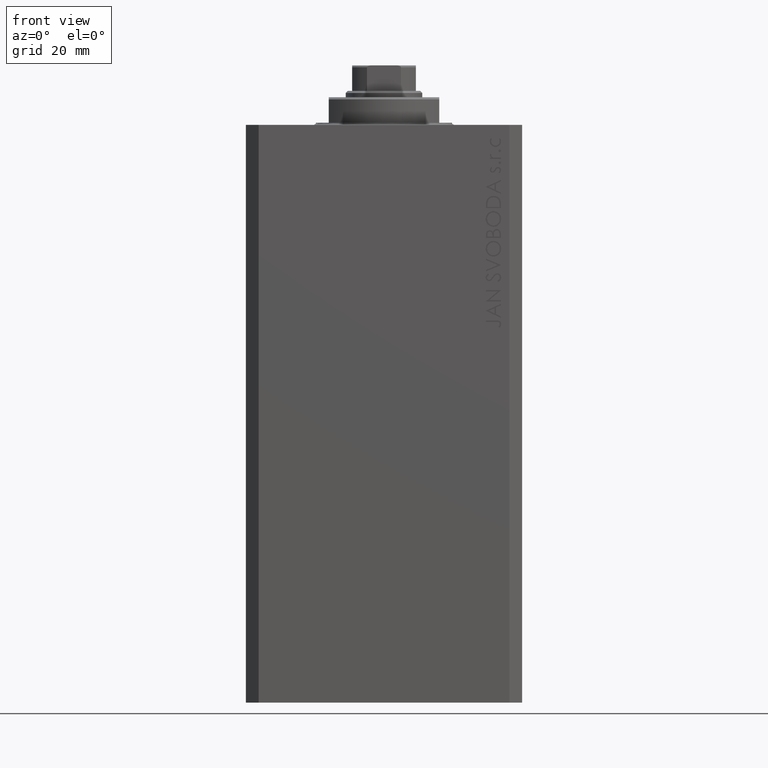
[diagram: clean part render]
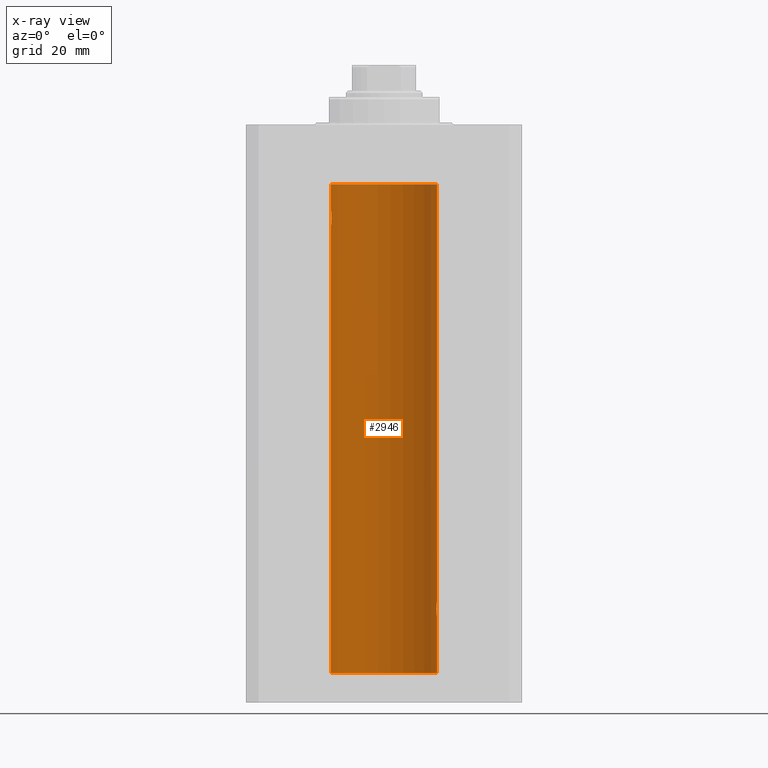
[diagram: x-ray — body ghosted, one internal face saturated and labeled with its STEP entity id]
A machine part, front view, then the same camera in x-ray: the body is ghosted and one INTERNAL B-rep face — a face not visible from any outside direction — is saturated and labeled: STEP entity #2946.
In plain terms, the highlighted cylindrical surface (partial cylindrical patch) has radius 12.5 mm, axis along (0, 0, 1).
Its self-contained STEP definition (entity closure, byte-faithful):
#602 = VECTOR ( 'NONE', #7820, 1000.000000000000000 ) ;
#641 = LINE ( 'NONE', #39407, #602 ) ;
#1230 = CARTESIAN_POINT ( 'NONE',  ( -12.46009879577771606, 1.003863686549169465, -23.73470742397611843 ) ) ;
#1662 = CARTESIAN_POINT ( 'NONE',  ( 12.50000000000000000, 2.320363022323678888E-15, -116.0000000000000142 ) ) ;
#1675 = DIRECTION ( 'NONE',  ( 0.000000000000000000, 0.000000000000000000, 1.000000000000000000 ) ) ;
#1892 = CARTESIAN_POINT ( 'NONE',  ( 12.33896267925302759, 2.000000000000248246, -114.2614317422078898 ) ) ;
#2168 = CARTESIAN_POINT ( 'NONE',  ( -12.50000000000000000, 1.530808426276628993E-15, -23.99999999999999645 ) ) ;
#2943 = CYLINDRICAL_SURFACE ( 'NONE', #36123, 12.50000000000000000 ) ;
#2946 = ADVANCED_FACE ( 'NONE', ( #10821 ), #2943, .F. ) ;
#3405 = DIRECTION ( 'NONE',  ( 1.000000000000000000, 0.000000000000000000, 0.000000000000000000 ) ) ;
#4128 = CARTESIAN_POINT ( 'NONE',  ( 0.000000000000000000, 0.000000000000000000, -129.0999999999999943 ) ) ;
#4309 = EDGE_CURVE ( 'NONE', #7398, #25077, #36822, .T. ) ;
#4817 = CARTESIAN_POINT ( 'NONE',  ( -12.40913174964213184, 1.507394620545641439, -23.32102833500698225 ) ) ;
#5486 = CARTESIAN_POINT ( 'NONE',  ( 12.37760587642916477, 1.747868572747719229, -115.0063965316900294 ) ) ;
#5768 = CARTESIAN_POINT ( 'NONE',  ( -12.34922241902463114, 1.935814255713574239, -22.51937350851555308 ) ) ;
#7005 = CARTESIAN_POINT ( 'NONE',  ( 0.000000000000000000, 0.000000000000000000, -129.0999999999999943 ) ) ;
#7398 = VERTEX_POINT ( 'NONE', #39677 ) ;
#7820 = DIRECTION ( 'NONE',  ( -0.000000000000000000, -0.000000000000000000, 1.000000000000000000 ) ) ;
#8384 = CARTESIAN_POINT ( 'NONE',  ( 0.000000000000000000, 0.000000000000000000, -13.99999999999999822 ) ) ;
#8412 = CARTESIAN_POINT ( 'NONE',  ( -12.37764291807175354, 1.747608771958140794, -20.99316879552500481 ) ) ;
#8426 = CIRCLE ( 'NONE', #22113, 12.50000000000000000 ) ;
#8600 = CARTESIAN_POINT ( 'NONE',  ( 12.48390005916863110, 0.6457215011736527899, -115.8974277155426762 ) ) ;
#9040 = ORIENTED_EDGE ( 'NONE', *, *, #46904, .T. ) ;
#9120 = CARTESIAN_POINT ( 'NONE',  ( -12.34781876294798053, 1.947190906025043633, -21.47436412829509678 ) ) ;
#9226 = CARTESIAN_POINT ( 'NONE',  ( -12.50000000000000000, 1.867773856434666690E-17, -20.00000000000000000 ) ) ;
#9349 = CARTESIAN_POINT ( 'NONE',  ( -12.46909283808506430, 0.8868029758979402155, -23.79742491916155345 ) ) ;
#9781 = B_SPLINE_CURVE_WITH_KNOTS ( 'NONE', 3,
 ( #44825, #19985, #23083, #16406, #12622, #34782, #27145, #41711, #15947, #30982, #45529, #41955, #22853, #12153, #23798, #38383, #16638, #11905 ),
 .UNSPECIFIED., .F., .F.,
 ( 4, 2, 2, 2, 2, 2, 2, 2, 4 ),
 ( 0.003132244164174466730, 0.003523586189974241625, 0.003914928215774016521, 0.004306270241573791416, 0.004697612267373566311, 0.005088954293173341206, 0.005480296318973116101, 0.005871638344772890997, 0.006262980370572665892 ),
 .UNSPECIFIED. ) ;
#9920 = ORIENTED_EDGE ( 'NONE', *, *, #42864, .T. ) ;
#10593 = EDGE_CURVE ( 'NONE', #13975, #39732, #8426, .T. ) ;
#10695 = EDGE_LOOP ( 'NONE', ( #20436, #42482, #12017, #26968, #33721, #9920, #9040, #46504, #36126 ) ) ;
#10821 = FACE_OUTER_BOUND ( 'NONE', #10695, .T. ) ;
#11735 = VECTOR ( 'NONE', #33480, 1000.000000000000000 ) ;
#11905 = CARTESIAN_POINT ( 'NONE',  ( 12.50000000000000000, -7.266276684081261841E-23, -112.0000000000000142 ) ) ;
#12017 = ORIENTED_EDGE ( 'NONE', *, *, #30158, .T. ) ;
#12153 = CARTESIAN_POINT ( 'NONE',  ( 12.48395395845270528, 0.6446573166014707423, -112.1022212421352009 ) ) ;
#12622 = CARTESIAN_POINT ( 'NONE',  ( 12.35520276972935427, 1.897773362058238877, -113.3552827863433947 ) ) ;
#12698 = CARTESIAN_POINT ( 'NONE',  ( -12.46903010196599304, 0.8876934327478135378, -20.20300788371381984 ) ) ;
#13975 = VERTEX_POINT ( 'NONE', #24851 ) ;
#14090 = VECTOR ( 'NONE', #44787, 1000.000000000000000 ) ;
#15432 = LINE ( 'NONE', #29995, #14090 ) ;
#15947 = CARTESIAN_POINT ( 'NONE',  ( 12.40916530024876430, 1.507117913375715990, -112.6786595504900532 ) ) ;
#16251 = CARTESIAN_POINT ( 'NONE',  ( -12.50000000000000000, 0.1323736289504353625, -20.00000000000000000 ) ) ;
#16406 = CARTESIAN_POINT ( 'NONE',  ( 12.34924836377099844, 1.935649219704934865, -113.4800206212716915 ) ) ;
#16439 = CARTESIAN_POINT ( 'NONE',  ( 12.33896267925302759, 2.000000000000247802, -114.0000000000000142 ) ) ;
#16638 = CARTESIAN_POINT ( 'NONE',  ( 12.49999999999999822, 0.1306079576516667173, -112.0000000000000000 ) ) ;
#16698 = VERTEX_POINT ( 'NONE', #20174 ) ;
#16925 = EDGE_CURVE ( 'NONE', #32271, #27865, #36821, .T. ) ;
#17201 = CARTESIAN_POINT ( 'NONE',  ( 12.50000000000000000, -7.266276684081261841E-23, -112.0000000000000142 ) ) ;
#17505 = LINE ( 'NONE', #32078, #26520 ) ;
#18138 = CIRCLE ( 'NONE', #31892, 12.50000000000000000 ) ;
#19352 = CARTESIAN_POINT ( 'NONE',  ( -12.44076681548080288, 1.220297236145718944, -23.58991408680628155 ) ) ;
#19985 = CARTESIAN_POINT ( 'NONE',  ( 12.33896267925302581, 2.000000000000247358, -113.8693470594991908 ) ) ;
#20174 = CARTESIAN_POINT ( 'NONE',  ( -12.50000000000000000, 1.530808498934191521E-15, -13.99999999999999822 ) ) ;
#20300 = CARTESIAN_POINT ( 'NONE',  ( -12.37922086519035325, 1.734998657226764829, -23.00335814299181436 ) ) ;
#20436 = ORIENTED_EDGE ( 'NONE', *, *, #27068, .F. ) ;
#21285 = VERTEX_POINT ( 'NONE', #25038 ) ;
#21464 = EDGE_CURVE ( 'NONE', #25077, #43593, #9781, .T. ) ;
#22113 = AXIS2_PLACEMENT_3D ( 'NONE', #4128, #33002, #29422 ) ;
#22484 = CARTESIAN_POINT ( 'NONE',  ( -12.50000000000000000, 1.530808498934191521E-15, -129.0999999999999943 ) ) ;
#22853 = CARTESIAN_POINT ( 'NONE',  ( 12.46910683544638232, 0.8866026273585037032, -112.2024786368969700 ) ) ;
#22930 = CARTESIAN_POINT ( 'NONE',  ( -12.34109209020652465, 1.986986967296539897, -22.26269462454597914 ) ) ;
#23083 = CARTESIAN_POINT ( 'NONE',  ( 12.34110728646152388, 1.986893050944454453, -113.7366134776498541 ) ) ;
#23116 = CARTESIAN_POINT ( 'NONE',  ( 12.46019522898365217, 1.002712894177336223, -115.7354089602760183 ) ) ;
#23595 = CARTESIAN_POINT ( 'NONE',  ( 12.46901623405144122, 0.8878913781257877780, -115.7968965171755116 ) ) ;
#23798 = CARTESIAN_POINT ( 'NONE',  ( 12.48983962833819028, 0.5199974825204898288, -112.0643516080801874 ) ) ;
#23872 = CARTESIAN_POINT ( 'NONE',  ( -12.48394649977302073, 0.6448065707253024526, -23.89773031393659153 ) ) ;
#24851 = CARTESIAN_POINT ( 'NONE',  ( 12.50000000000000000, 0.000000000000000000, -129.0999999999999943 ) ) ;
#25038 = CARTESIAN_POINT ( 'NONE',  ( 12.50000000000000000, 0.000000000000000000, -13.99999999999999822 ) ) ;
#25077 = VERTEX_POINT ( 'NONE', #33936 ) ;
#25366 = LINE ( 'NONE', #22484, #11735 ) ;
#26513 = CARTESIAN_POINT ( 'NONE',  ( -12.43019346654084956, 1.322451657002078340, -20.49398366327208620 ) ) ;
#26520 = VECTOR ( 'NONE', #39477, 1000.000000000000000 ) ;
#26944 = CARTESIAN_POINT ( 'NONE',  ( 12.48989642018887736, 0.5185418732824252919, -115.9360129218760846 ) ) ;
#26968 = ORIENTED_EDGE ( 'NONE', *, *, #4309, .T. ) ;
#27068 = EDGE_CURVE ( 'NONE', #39732, #27865, #25366, .T. ) ;
#27145 = CARTESIAN_POINT ( 'NONE',  ( 12.37925647381943506, 1.734744884174218571, -112.9962073259865178 ) ) ;
#27225 = CARTESIAN_POINT ( 'NONE',  ( -12.46021263690096958, 1.002494658017156981, -20.26446744561863156 ) ) ;
#27465 = CARTESIAN_POINT ( 'NONE',  ( -12.39864157855465088, 1.590288205413973532, -23.21980790594580313 ) ) ;
#27865 = VERTEX_POINT ( 'NONE', #42890 ) ;
#29422 = DIRECTION ( 'NONE',  ( 1.000000000000000000, 0.000000000000000000, 0.000000000000000000 ) ) ;
#29995 = CARTESIAN_POINT ( 'NONE',  ( 12.50000000000000000, 0.000000000000000000, -129.0999999999999943 ) ) ;
#30158 = EDGE_CURVE ( 'NONE', #13975, #7398, #15432, .T. ) ;
#30302 = CARTESIAN_POINT ( 'NONE',  ( 12.43016561391612917, 1.322713721413880661, -115.5057887783670481 ) ) ;
#30346 = CARTESIAN_POINT ( 'NONE',  ( -12.44082361696003503, 1.219754986802281449, -20.40963319990594016 ) ) ;
#30777 = CARTESIAN_POINT ( 'NONE',  ( 12.50000000000000178, 0.1324055009716466613, -116.0000000000000426 ) ) ;
#30825 = CARTESIAN_POINT ( 'NONE',  ( -12.49789934882883458, 0.2624928479599910047, -20.01301208516349917 ) ) ;
#30982 = CARTESIAN_POINT ( 'NONE',  ( 12.43037348241797524, 1.320834183883837554, -112.4924383770429870 ) ) ;
#31056 = CARTESIAN_POINT ( 'NONE',  ( -12.33895470450623044, 2.000049200055401766, -22.12992629360264729 ) ) ;
#31892 = AXIS2_PLACEMENT_3D ( 'NONE', #8384, #1675, #37485 ) ;
#32078 = CARTESIAN_POINT ( 'NONE',  ( -12.50000000000000000, 1.530808498934191521E-15, -129.0999999999999943 ) ) ;
#32271 = VERTEX_POINT ( 'NONE', #9226 ) ;
#33002 = DIRECTION ( 'NONE',  ( 0.000000000000000000, 0.000000000000000000, 1.000000000000000000 ) ) ;
#33480 = DIRECTION ( 'NONE',  ( -0.000000000000000000, -0.000000000000000000, 1.000000000000000000 ) ) ;
#33721 = ORIENTED_EDGE ( 'NONE', *, *, #21464, .T. ) ;
#33936 = CARTESIAN_POINT ( 'NONE',  ( 12.33896267925302759, 2.000000000000247802, -114.0000000000000142 ) ) ;
#34352 = CARTESIAN_POINT ( 'NONE',  ( 12.39869754437268590, 1.598954131913722820, -115.2293215281301286 ) ) ;
#34577 = CARTESIAN_POINT ( 'NONE',  ( 12.34779119491631683, 1.947363444907009633, -114.5250277516825719 ) ) ;
#34782 = CARTESIAN_POINT ( 'NONE',  ( 12.37021546997940291, 1.797317011867403114, -113.1129511974108652 ) ) ;
#34857 = CARTESIAN_POINT ( 'NONE',  ( -12.49788564268284041, 0.2633501011236127343, -23.98690384766255335 ) ) ;
#36123 = AXIS2_PLACEMENT_3D ( 'NONE', #7005, #41918, #3405 ) ;
#36126 = ORIENTED_EDGE ( 'NONE', *, *, #16925, .T. ) ;
#36822 = B_SPLINE_CURVE_WITH_KNOTS ( 'NONE', 3,
 ( #1662, #30777, #45333, #26944, #8600, #23595, #23116, #41515, #30302, #34352, #5486, #34577, #1892, #16439 ),
 .UNSPECIFIED., .F., .F.,
 ( 4, 2, 2, 2, 2, 2, 4 ),
 ( 2.254408494944823136E-18, 0.0003915305205218102386, 0.0007830610410436180920, 0.001174591561565426108, 0.001566122082087234016, 0.002349183123130850048, 0.003132244164174466730 ),
 .UNSPECIFIED. ) ;
#36821 = B_SPLINE_CURVE_WITH_KNOTS ( 'NONE', 3,
 ( #44664, #16251, #30825, #41092, #45377, #12698, #27225, #30346, #26513, #41788, #8412, #9120, #38224, #31056, #22930, #5768, #37513, #45608, #20300, #27465, #4817, #42025, #19352, #1230, #9349, #23872, #38461, #34857, #44904, #2168 ),
 .UNSPECIFIED., .F., .F.,
 ( 4, 2, 2, 2, 2, 2, 2, 2, 2, 2, 2, 2, 2, 2, 4 ),
 ( 1.814683826656258666E-20, 0.0003914362731607577369, 0.0007828725463215154739, 0.001174308819482273265, 0.001565745092643030948, 0.002348617638964546530, 0.003131490185286061895, 0.003522926458446825216, 0.003914362731607588103, 0.004305799004768351423, 0.004697235277929114744, 0.005088671551089878065, 0.005480107824250641385, 0.005871544097411404706, 0.006262980370572168026 ),
 .UNSPECIFIED. ) ;
#37485 = DIRECTION ( 'NONE',  ( 1.000000000000000000, 0.000000000000000000, 0.000000000000000000 ) ) ;
#37513 = CARTESIAN_POINT ( 'NONE',  ( -12.35517291625592051, 1.897967064543089721, -22.64415233770293412 ) ) ;
#38224 = CARTESIAN_POINT ( 'NONE',  ( -12.33897869807161385, 1.999901172190678089, -21.73788193668374547 ) ) ;
#38383 = CARTESIAN_POINT ( 'NONE',  ( 12.49788668346399945, 0.2632864803365707607, -112.0130897583833587 ) ) ;
#38461 = CARTESIAN_POINT ( 'NONE',  ( -12.48983485452574982, 0.5201193324741355539, -23.93561774521849372 ) ) ;
#39407 = CARTESIAN_POINT ( 'NONE',  ( 12.50000000000000000, 0.000000000000000000, -129.0999999999999943 ) ) ;
#39477 = DIRECTION ( 'NONE',  ( -0.000000000000000000, -0.000000000000000000, 1.000000000000000000 ) ) ;
#39677 = CARTESIAN_POINT ( 'NONE',  ( 12.50000000000000000, 2.320363022323678888E-15, -116.0000000000000142 ) ) ;
#39732 = VERTEX_POINT ( 'NONE', #43664 ) ;
#41092 = CARTESIAN_POINT ( 'NONE',  ( -12.48990118705761532, 0.5184196815546056047, -20.06395648222637007 ) ) ;
#41515 = CARTESIAN_POINT ( 'NONE',  ( 12.44079900692650931, 1.220007525301739282, -115.5901757908366818 ) ) ;
#41711 = CARTESIAN_POINT ( 'NONE',  ( 12.39867611624532806, 1.590019252152828910, -112.7798449592960850 ) ) ;
#41788 = CARTESIAN_POINT ( 'NONE',  ( -12.39873273758732175, 1.598680238462371062, -20.77033506126851137 ) ) ;
#41918 = DIRECTION ( 'NONE',  ( -0.000000000000000000, -0.000000000000000000, 1.000000000000000000 ) ) ;
#41955 = CARTESIAN_POINT ( 'NONE',  ( 12.46011632531798874, 1.003644408234883434, -112.2651679968767411 ) ) ;
#42025 = CARTESIAN_POINT ( 'NONE',  ( -12.43034574091277911, 1.321095788880539024, -23.50733550364322255 ) ) ;
#42482 = ORIENTED_EDGE ( 'NONE', *, *, #10593, .F. ) ;
#42864 = EDGE_CURVE ( 'NONE', #43593, #21285, #641, .T. ) ;
#42890 = CARTESIAN_POINT ( 'NONE',  ( -12.50000000000000000, 1.530808426276628993E-15, -23.99999999999999645 ) ) ;
#43593 = VERTEX_POINT ( 'NONE', #17201 ) ;
#43664 = CARTESIAN_POINT ( 'NONE',  ( -12.50000000000000000, 1.530808498934191521E-15, -129.0999999999999943 ) ) ;
#44664 = CARTESIAN_POINT ( 'NONE',  ( -12.50000000000000000, 1.867773856434666690E-17, -20.00000000000000000 ) ) ;
#44787 = DIRECTION ( 'NONE',  ( -0.000000000000000000, -0.000000000000000000, 1.000000000000000000 ) ) ;
#44825 = CARTESIAN_POINT ( 'NONE',  ( 12.33896267925302759, 2.000000000000247802, -114.0000000000000142 ) ) ;
#44904 = CARTESIAN_POINT ( 'NONE',  ( -12.50000000000000533, 0.1306394121199390135, -24.00000000000000711 ) ) ;
#45333 = CARTESIAN_POINT ( 'NONE',  ( 12.49789833780794446, 0.2625555164371021766, -115.9869817082214496 ) ) ;
#45377 = CARTESIAN_POINT ( 'NONE',  ( -12.48390768591463207, 0.6455696738844916016, -20.10252270298193977 ) ) ;
#45452 = EDGE_CURVE ( 'NONE', #32271, #16698, #17505, .T. ) ;
#45529 = CARTESIAN_POINT ( 'NONE',  ( 12.44079117518645639, 1.220047488436368122, -112.4098967633508437 ) ) ;
#45608 = CARTESIAN_POINT ( 'NONE',  ( -12.37018026341338839, 1.797558627508998086, -22.88656313533016373 ) ) ;
#46504 = ORIENTED_EDGE ( 'NONE', *, *, #45452, .F. ) ;
#46904 = EDGE_CURVE ( 'NONE', #21285, #16698, #18138, .T. ) ;